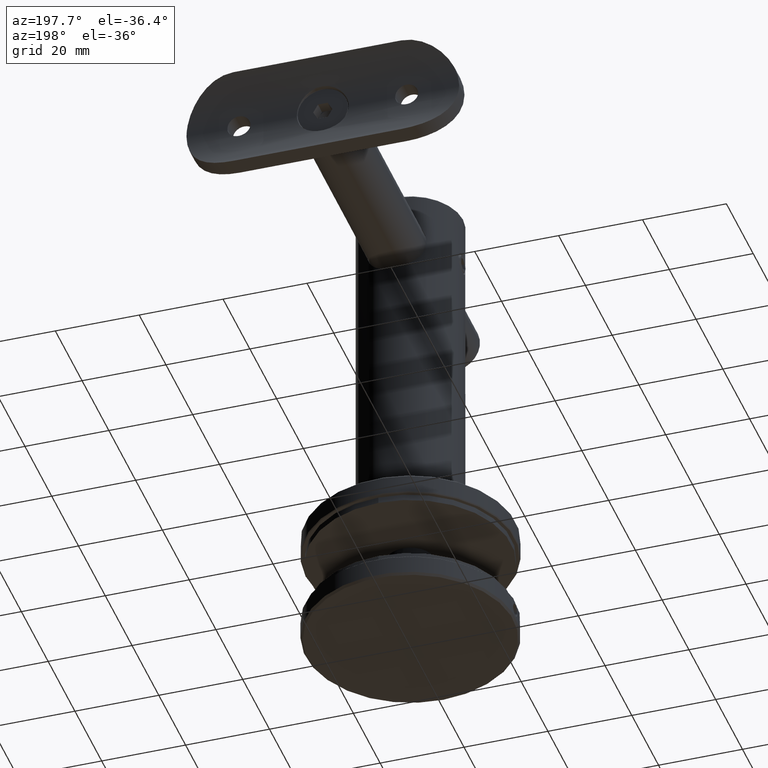
[diagram: clean part render]
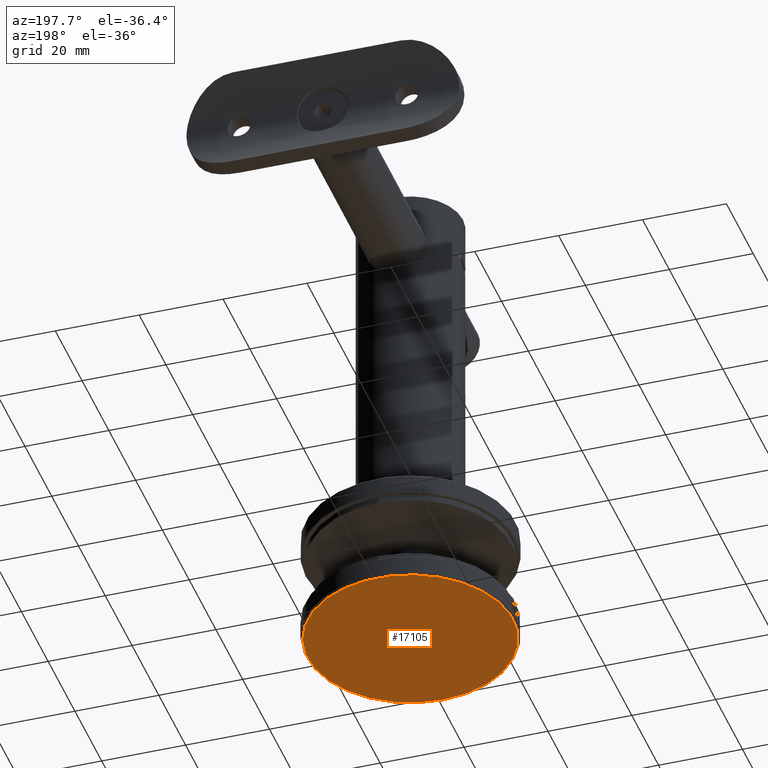
[diagram: same view with one face highlighted and labeled with its STEP entity id]
A machine part, auxiliary view. The second image highlights one B-rep face of the part: STEP entity #17105.
In plain terms, the highlighted planar face has unit normal (0, 0, 1).
Its self-contained STEP definition (entity closure, byte-faithful):
#3036 = CIRCLE ( 'NONE', #16103, 24.50000000000000700 ) ;
#4207 = AXIS2_PLACEMENT_3D ( 'NONE', #15053, #19798, #11851 ) ;
#5777 = PLANE ( 'NONE',  #4207 ) ;
#9157 = ORIENTED_EDGE ( 'NONE', *, *, #16321, .T. ) ;
#9759 = VERTEX_POINT ( 'NONE', #16001 ) ;
#11851 = DIRECTION ( 'NONE',  ( 0.0000000000000000000, -0.0000000000000000000, 1.000000000000000000 ) ) ;
#15053 = CARTESIAN_POINT ( 'NONE',  ( 0.0000000000000000000, 0.0000000000000000000, 0.0000000000000000000 ) ) ;
#16001 = CARTESIAN_POINT ( 'NONE',  ( 0.0000000000000000000, 0.0000000000000000000, 24.50000000000000700 ) ) ;
#16103 = AXIS2_PLACEMENT_3D ( 'NONE', #17891, #16293, #17967 ) ;
#16293 = DIRECTION ( 'NONE',  ( -0.0000000000000000000, -1.000000000000000000, -0.0000000000000000000 ) ) ;
#16321 = EDGE_CURVE ( 'NONE', #9759, #9759, #3036, .T. ) ;
#17105 = ADVANCED_FACE ( 'NONE', ( #17181 ), #5777, .F. ) ;
#17181 = FACE_OUTER_BOUND ( 'NONE', #20372, .T. ) ;
#17891 = CARTESIAN_POINT ( 'NONE',  ( 0.0000000000000000000, 0.0000000000000000000, 0.0000000000000000000 ) ) ;
#17967 = DIRECTION ( 'NONE',  ( 0.0000000000000000000, 0.0000000000000000000, 1.000000000000000000 ) ) ;
#19798 = DIRECTION ( 'NONE',  ( 0.0000000000000000000, 1.000000000000000000, 0.0000000000000000000 ) ) ;
#20372 = EDGE_LOOP ( 'NONE', ( #9157 ) ) ;